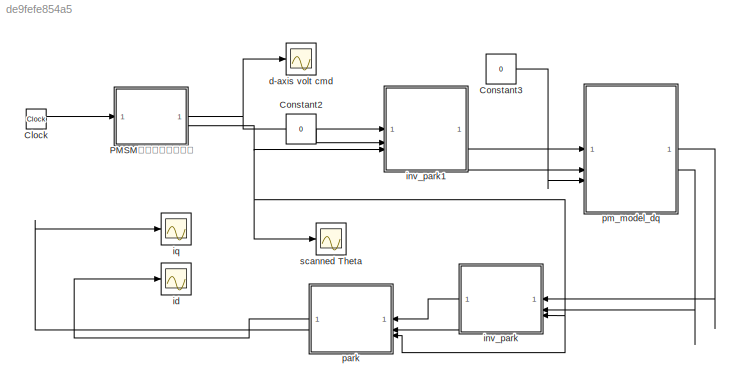
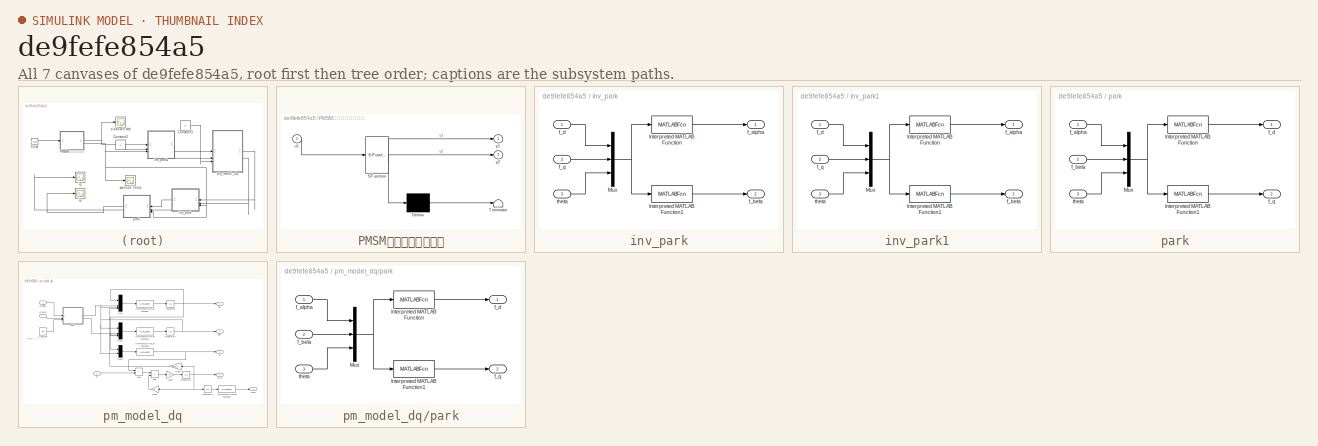
[diagram: thumbnail index - all 7 canvases of the model, root first then tree order]
MODEL slx_de9fefe854a5
KIND model
CONFIG AbsTol = auto
CONFIG EnableMultiTasking = off
CONFIG FixedStep = 0.00002
CONFIG MaxStep = auto
CONFIG MinStep = 0.00025
CONFIG RelTol = 1e-3
CONFIG SampleTimeConstraint = Unconstrained
CONFIG SolverName = FixedStepAuto
CONFIG StartTime = 0.0
CONFIG StopTime = 0.6
BLOCK [Clock] Clock
BLOCK [Constant] Constant2
  Value = 0
BLOCK [Constant] Constant3
  Value = 0
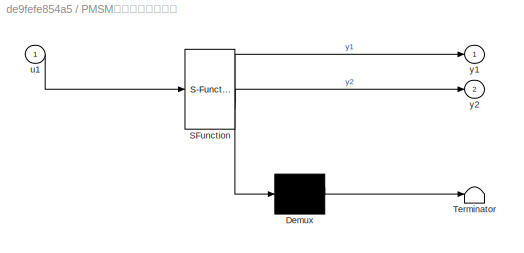
BLOCK [SubSystem] PMSM轉子初始位置偵測
  ErrorFcn = Stateflow.Translate.translate
  LibrarySourceBlock = simulink/User-Defined\nFunctions/MATLAB Function
  PermitHierarchicalResolution = ExplicitOnly
  SFBlockType = MATLAB Function
  TreatAsAtomicUnit = on
BLOCK [Demux] PMSM轉子初始位置偵測/ Demux 
  Outputs = 1
BLOCK [S-Function] PMSM轉子初始位置偵測/ SFunction 
  EnableBusSupport = on
  FunctionName = sf_sfun
  PortCounts = [1 3]
  SFcnIsStateOwnerBlock = off
  SFunctionDeploymentMode = off
  Tag = Stateflow S-Function 2
BLOCK [Terminator] PMSM轉子初始位置偵測/ Terminator 
BLOCK [Inport] PMSM轉子初始位置偵測/u1
BLOCK [Outport] PMSM轉子初始位置偵測/y1
BLOCK [Outport] PMSM轉子初始位置偵測/y2
  Port = 2
BLOCK [Scope] d-axis volt cmd
  Floating = off
  NumInputPorts = 1
  ScopeSpecificationString = Simulink.scopes.TimeScopeBlockCfg('CurrentConfiguration', extmgr.ConfigurationSet(extmgr.Configuration('Core','General UI',true,'FigureColor',[1 1 1]),extmgr.Configuration('Core','Source UI',true),extmgr.Configuration('Sources','WiredSimulink',true,'DataLoggingVariableName','ScopeData1'),extmgr.Configuration('Visuals','Time Domain',true,'SerializedDisplays',{struct('MinYLimReal','-0.63927','MaxYLi...<+1574ch>
BLOCK [Scope] id
  Floating = off
  NumInputPorts = 1
  ScopeSpecificationString = Simulink.scopes.TimeScopeBlockCfg('CurrentConfiguration', extmgr.ConfigurationSet(extmgr.Configuration('Core','General UI',true,'FigureColor',[1 1 1]),extmgr.Configuration('Core','Source UI',true),extmgr.Configuration('Sources','WiredSimulink',true,'DataLoggingVariableName','ScopeData4'),extmgr.Configuration('Visuals','Time Domain',true,'SerializedDisplays',{struct('MinYLimReal','-3.12962','MaxYLi...<+1559ch>
BLOCK [SubSystem] inv_park
BLOCK [MATLABFcn] inv_park/Interpreted MATLAB Function
  MATLABFcn = cos(u(3))*u(1)-sin(u(3))*u(2)
BLOCK [MATLABFcn] inv_park/Interpreted MATLAB Function1
  MATLABFcn = sin(u(3))*u(1)+cos(u(3))*u(2)
BLOCK [Mux] inv_park/Mux
  DisplayOption = bar
  Inputs = 3
BLOCK [Outport] inv_park/f_alpha
BLOCK [Outport] inv_park/f_beta
  Port = 2
BLOCK [Inport] inv_park/f_d
BLOCK [Inport] inv_park/f_q
  Port = 2
BLOCK [Inport] inv_park/theta
  Port = 3
BLOCK [SubSystem] inv_park1
  NameLocation = top
BLOCK [MATLABFcn] inv_park1/Interpreted MATLAB Function
  MATLABFcn = cos(u(3))*u(1)-sin(u(3))*u(2)
BLOCK [MATLABFcn] inv_park1/Interpreted MATLAB Function1
  MATLABFcn = sin(u(3))*u(1)+cos(u(3))*u(2)
BLOCK [Mux] inv_park1/Mux
  DisplayOption = bar
  Inputs = 3
BLOCK [Outport] inv_park1/f_alpha
BLOCK [Outport] inv_park1/f_beta
  Port = 2
BLOCK [Inport] inv_park1/f_d
BLOCK [Inport] inv_park1/f_q
  Port = 2
BLOCK [Inport] inv_park1/theta
  Port = 3
BLOCK [Scope] iq
  Floating = off
  NumInputPorts = 1
  ScopeSpecificationString = Simulink.scopes.TimeScopeBlockCfg('CurrentConfiguration', extmgr.ConfigurationSet(extmgr.Configuration('Core','General UI',true,'FigureColor',[1 1 1]),extmgr.Configuration('Core','Source UI',true),extmgr.Configuration('Sources','WiredSimulink',true,'DataLoggingVariableName','ScopeData1'),extmgr.Configuration('Visuals','Time Domain',true,'SerializedDisplays',{struct('MinYLimReal','-4.77819','MaxYLi...<+1561ch>
BLOCK [SubSystem] park
BLOCK [MATLABFcn] park/Interpreted MATLAB Function
  MATLABFcn = cos(u(3))*u(1)+sin(u(3))*u(2)
BLOCK [MATLABFcn] park/Interpreted MATLAB Function1
  MATLABFcn = -sin(u(3))*u(1)+cos(u(3))*u(2)
BLOCK [Mux] park/Mux
  DisplayOption = bar
  Inputs = 3
BLOCK [Inport] park/f_alpha
BLOCK [Inport] park/f_beta
  Port = 2
BLOCK [Outport] park/f_d
BLOCK [Outport] park/f_q
  Port = 2
BLOCK [Inport] park/theta
  Port = 3
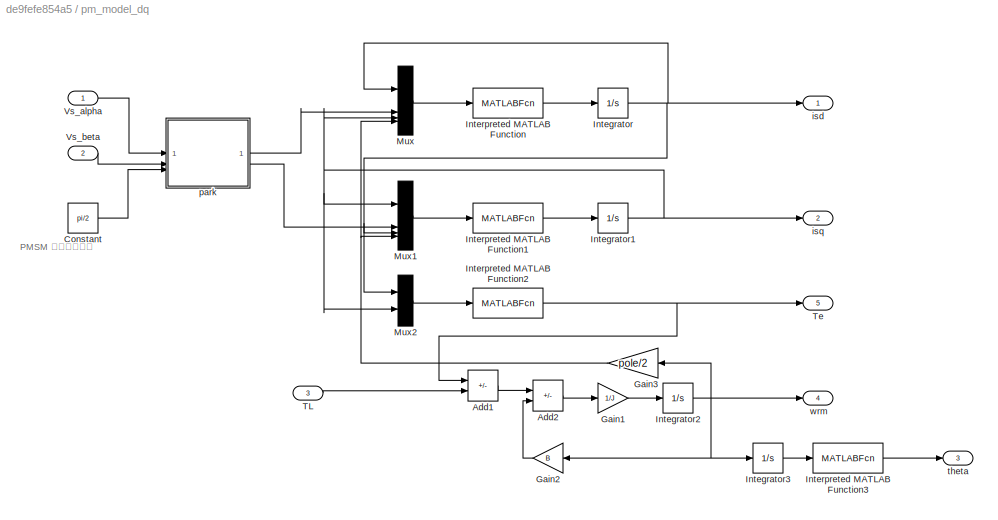
BLOCK [SubSystem] pm_model_dq
BLOCK [Sum] pm_model_dq/Add1
  IconShape = rectangular
  Inputs = +-
BLOCK [Sum] pm_model_dq/Add2
  IconShape = rectangular
  Inputs = +-
BLOCK [Constant] pm_model_dq/Constant
  Value = pi/2
BLOCK [Gain] pm_model_dq/Gain1
  Gain = 1/J
BLOCK [Gain] pm_model_dq/Gain2
  Gain = B
  NameLocation = top
BLOCK [Gain] pm_model_dq/Gain3
  Gain = pole/2
BLOCK [Integrator] pm_model_dq/Integrator
BLOCK [Integrator] pm_model_dq/Integrator1
BLOCK [Integrator] pm_model_dq/Integrator2
BLOCK [Integrator] pm_model_dq/Integrator3
BLOCK [MATLABFcn] pm_model_dq/Interpreted MATLAB Function
  MATLABFcn = -(Rs/Ld)*u(1) + (Lq/Ld)*u(3)*u(4) + u(2)/Ld
BLOCK [MATLABFcn] pm_model_dq/Interpreted MATLAB Function1
  MATLABFcn = -(Rs/Lq)*u(1) - (Ld/Lq)*u(3)*u(4) - (Lamda_f/Lq)*u(4) + u(2)/Lq
BLOCK [MATLABFcn] pm_model_dq/Interpreted MATLAB Function2
  MATLABFcn = 3/2*(pole/2)*(Lamda_f*u(2) + (Ld-Lq)*u(1)*u(2))
BLOCK [MATLABFcn] pm_model_dq/Interpreted MATLAB Function3
  MATLABFcn = mod(u, 2*pi)
BLOCK [Mux] pm_model_dq/Mux
  DisplayOption = bar
BLOCK [Mux] pm_model_dq/Mux1
  DisplayOption = bar
BLOCK [Mux] pm_model_dq/Mux2
  DisplayOption = bar
  Inputs = 2
BLOCK [Inport] pm_model_dq/TL
  Port = 3
BLOCK [Outport] pm_model_dq/Te
  Port = 5
BLOCK [Inport] pm_model_dq/Vs_alpha
BLOCK [Inport] pm_model_dq/Vs_beta
  Port = 2
BLOCK [Outport] pm_model_dq/isd
BLOCK [Outport] pm_model_dq/isq
  Port = 2
BLOCK [SubSystem] pm_model_dq/park
  NameLocation = top
BLOCK [MATLABFcn] pm_model_dq/park/Interpreted MATLAB Function
  MATLABFcn = cos(u(3))*u(1)+sin(u(3))*u(2)
BLOCK [MATLABFcn] pm_model_dq/park/Interpreted MATLAB Function1
  MATLABFcn = -sin(u(3))*u(1)+cos(u(3))*u(2)
BLOCK [Mux] pm_model_dq/park/Mux
  DisplayOption = bar
  Inputs = 3
BLOCK [Inport] pm_model_dq/park/f_alpha
BLOCK [Inport] pm_model_dq/park/f_beta
  Port = 2
BLOCK [Outport] pm_model_dq/park/f_d
BLOCK [Outport] pm_model_dq/park/f_q
  Port = 2
BLOCK [Inport] pm_model_dq/park/theta
  Port = 3
BLOCK [Outport] pm_model_dq/theta
  Port = 3
BLOCK [Outport] pm_model_dq/wrm
  Port = 4
BLOCK [Scope] scanned Theta
  Floating = off
  NumInputPorts = 1
  ScopeSpecificationString = Simulink.scopes.TimeScopeBlockCfg('CurrentConfiguration', extmgr.ConfigurationSet(extmgr.Configuration('Core','General UI',true,'FigureColor',[1 1 1]),extmgr.Configuration('Core','Source UI',true),extmgr.Configuration('Sources','WiredSimulink',true,'DataLoggingVariableName','ScopeData2'),extmgr.Configuration('Visuals','Time Domain',true,'SerializedDisplays',{struct('MinYLimReal','-0.62177','MaxYLi...<+1570ch>
ANNOTATION pm_model_dq: PMSM 轉子初始位置
LINE Clock:1 -> PMSM轉子初始位置偵測:1
LINE Constant2:1 -> inv_park1:2
LINE Constant3:1 -> pm_model_dq:3
NET PMSM轉子初始位置偵測:1 -> d-axis volt cmd:1, inv_park1:1
NET PMSM轉子初始位置偵測:2 -> inv_park1:3, inv_park:3, park:3, scanned Theta:1
LINE inv_park/Interpreted MATLAB Function1:1 -> inv_park/f_beta:1
LINE inv_park/Interpreted MATLAB Function:1 -> inv_park/f_alpha:1
NET inv_park/Mux:1 -> inv_park/Interpreted MATLAB Function1:1, inv_park/Interpreted MATLAB Function:1
LINE inv_park/f_d:1 -> inv_park/Mux:1
LINE inv_park/f_q:1 -> inv_park/Mux:2
LINE inv_park/theta:1 -> inv_park/Mux:3
LINE inv_park1/Interpreted MATLAB Function1:1 -> inv_park1/f_beta:1
LINE inv_park1/Interpreted MATLAB Function:1 -> inv_park1/f_alpha:1
NET inv_park1/Mux:1 -> inv_park1/Interpreted MATLAB Function1:1, inv_park1/Interpreted MATLAB Function:1
LINE inv_park1/f_d:1 -> inv_park1/Mux:1
LINE inv_park1/f_q:1 -> inv_park1/Mux:2
LINE inv_park1/theta:1 -> inv_park1/Mux:3
LINE inv_park1:1 -> pm_model_dq:1
LINE inv_park1:2 -> pm_model_dq:2
LINE inv_park:1 -> park:1
LINE inv_park:2 -> park:2
LINE park/Interpreted MATLAB Function1:1 -> park/f_q:1
LINE park/Interpreted MATLAB Function:1 -> park/f_d:1
NET park/Mux:1 -> park/Interpreted MATLAB Function1:1, park/Interpreted MATLAB Function:1
LINE park/f_alpha:1 -> park/Mux:1
LINE park/f_beta:1 -> park/Mux:2
LINE park/theta:1 -> park/Mux:3
LINE park:1 -> id:1
LINE park:2 -> iq:1
LINE pm_model_dq/Add1:1 -> pm_model_dq/Add2:1
LINE pm_model_dq/Add2:1 -> pm_model_dq/Gain1:1
LINE pm_model_dq/Constant:1 -> pm_model_dq/park:3
LINE pm_model_dq/Gain1:1 -> pm_model_dq/Integrator2:1
LINE pm_model_dq/Gain2:1 -> pm_model_dq/Add2:2
NET pm_model_dq/Gain3:1 -> pm_model_dq/Mux1:4, pm_model_dq/Mux:4
NET pm_model_dq/Integrator1:1 -> pm_model_dq/Mux1:1, pm_model_dq/Mux2:2, pm_model_dq/Mux:3, pm_model_dq/isq:1
NET pm_model_dq/Integrator2:1 -> pm_model_dq/Gain2:1, pm_model_dq/Gain3:1, pm_model_dq/Integrator3:1, pm_model_dq/wrm:1
LINE pm_model_dq/Integrator3:1 -> pm_model_dq/Interpreted MATLAB Function3:1
NET pm_model_dq/Integrator:1 -> pm_model_dq/Mux1:3, pm_model_dq/Mux2:1, pm_model_dq/Mux:1, pm_model_dq/isd:1
LINE pm_model_dq/Interpreted MATLAB Function1:1 -> pm_model_dq/Integrator1:1
NET pm_model_dq/Interpreted MATLAB Function2:1 -> pm_model_dq/Add1:1, pm_model_dq/Te:1
LINE pm_model_dq/Interpreted MATLAB Function3:1 -> pm_model_dq/theta:1
LINE pm_model_dq/Interpreted MATLAB Function:1 -> pm_model_dq/Integrator:1
LINE pm_model_dq/Mux1:1 -> pm_model_dq/Interpreted MATLAB Function1:1
LINE pm_model_dq/Mux2:1 -> pm_model_dq/Interpreted MATLAB Function2:1
LINE pm_model_dq/Mux:1 -> pm_model_dq/Interpreted MATLAB Function:1
LINE pm_model_dq/TL:1 -> pm_model_dq/Add1:2
LINE pm_model_dq/Vs_alpha:1 -> pm_model_dq/park:1
LINE pm_model_dq/Vs_beta:1 -> pm_model_dq/park:2
LINE pm_model_dq/park/Interpreted MATLAB Function1:1 -> pm_model_dq/park/f_q:1
LINE pm_model_dq/park/Interpreted MATLAB Function:1 -> pm_model_dq/park/f_d:1
NET pm_model_dq/park/Mux:1 -> pm_model_dq/park/Interpreted MATLAB Function1:1, pm_model_dq/park/Interpreted MATLAB Function:1
LINE pm_model_dq/park/f_alpha:1 -> pm_model_dq/park/Mux:1
LINE pm_model_dq/park/f_beta:1 -> pm_model_dq/park/Mux:2
LINE pm_model_dq/park/theta:1 -> pm_model_dq/park/Mux:3
LINE pm_model_dq/park:1 -> pm_model_dq/Mux:2
LINE pm_model_dq/park:2 -> pm_model_dq/Mux1:2
LINE pm_model_dq:1 -> inv_park:1
LINE pm_model_dq:2 -> inv_park:2
note: NET lines group one-source signal fan-out (src -> all destinations, sorted); 1:1 wires keep LINE
CHART PMSM轉子初始位置偵測 states=1 transitions=1
  STATE_LABEL 'eML_blk_kernel()'
  STATE_LABEL 'SCRIPT:\nfunction [y1, y2] = fcn(u1)\n    Ts = 1e-4;\n    theta_V=0:pi/12:2*pi;\n    Um = 30;\n    n=5; m=300;\n    period = (n+m)*Ts;\n    a = floor(u1/period); \n    b = mod(u1, period);\n    if((u1 <= (a*period + n*Ts)) && (a<25))\n      y1 = Um;\n      y2 = theta_V(a+1);\n    else\n      y1 = 0;\n      y2 = theta_V(a+1);\n    end\n\n'
CHART  states=0 transitions=0
